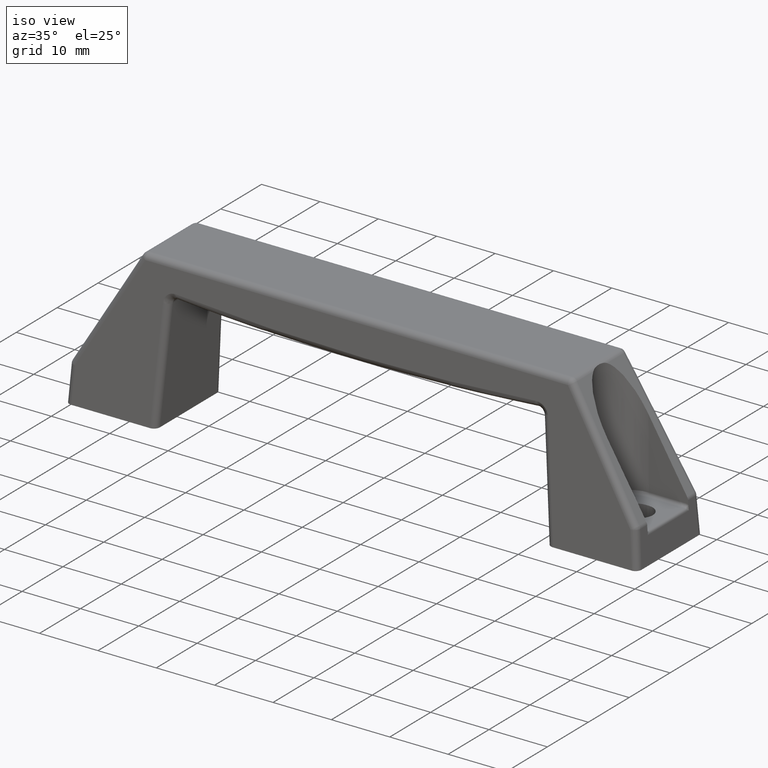
[diagram: clean part render]
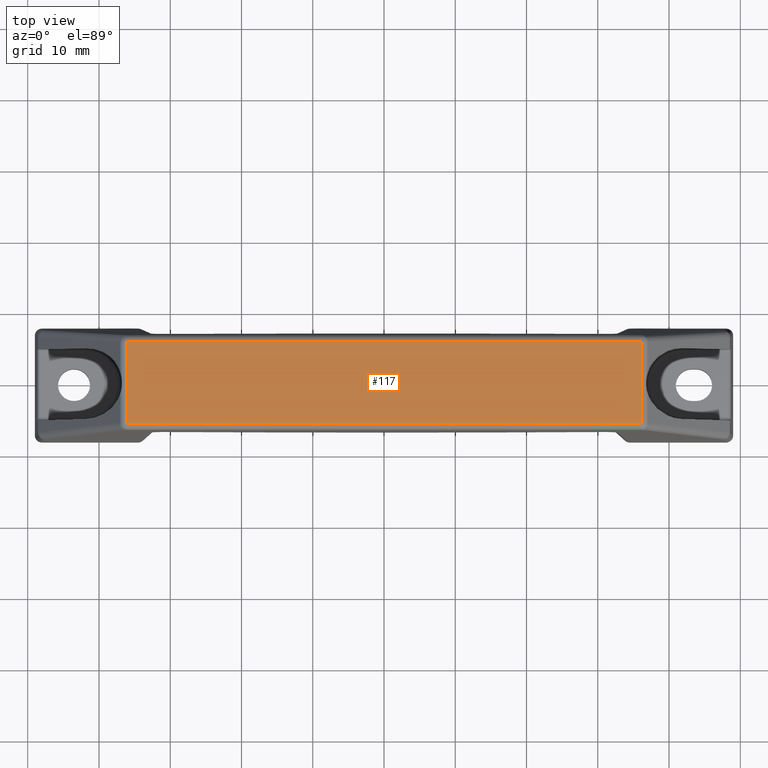
[diagram: tour spotlight — one face highlighted and labeled with its STEP entity id]
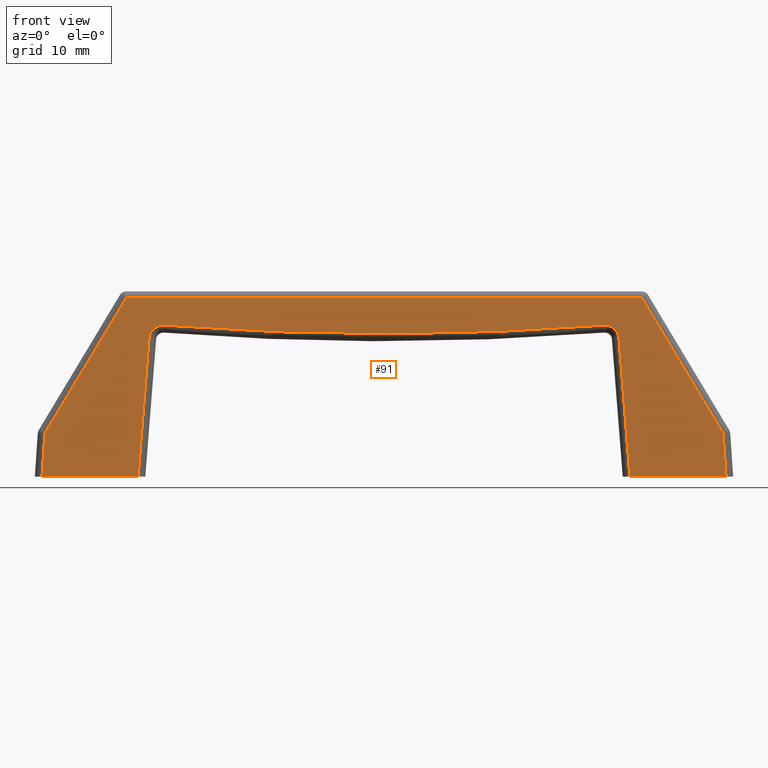
[diagram: tour spotlight — one face highlighted and labeled with its STEP entity id]
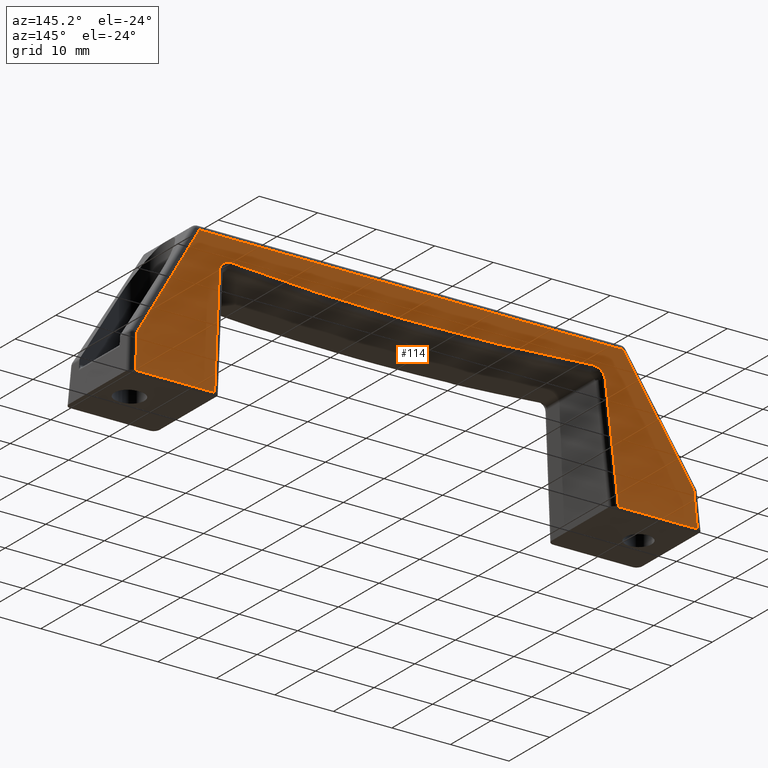
[diagram: tour spotlight — one face highlighted and labeled with its STEP entity id]
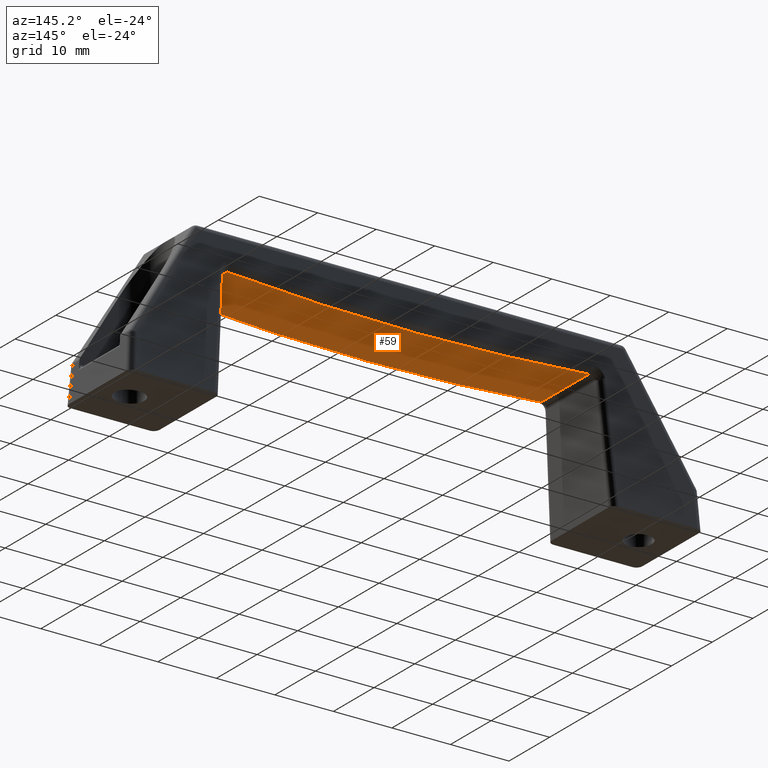
[diagram: tour spotlight — one face highlighted and labeled with its STEP entity id]
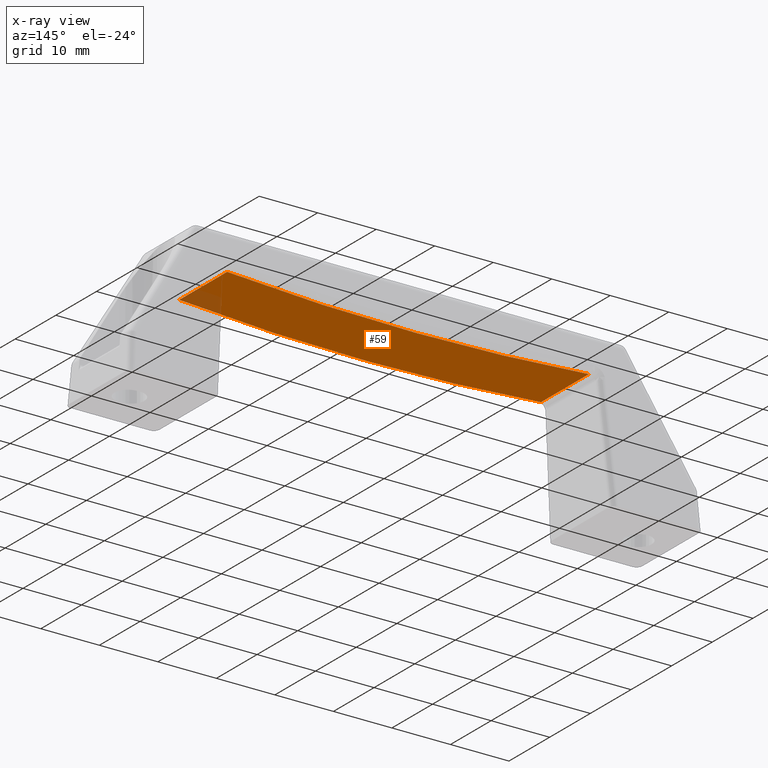
[diagram: x-ray of the same camera — body ghosted, this tour face saturated]
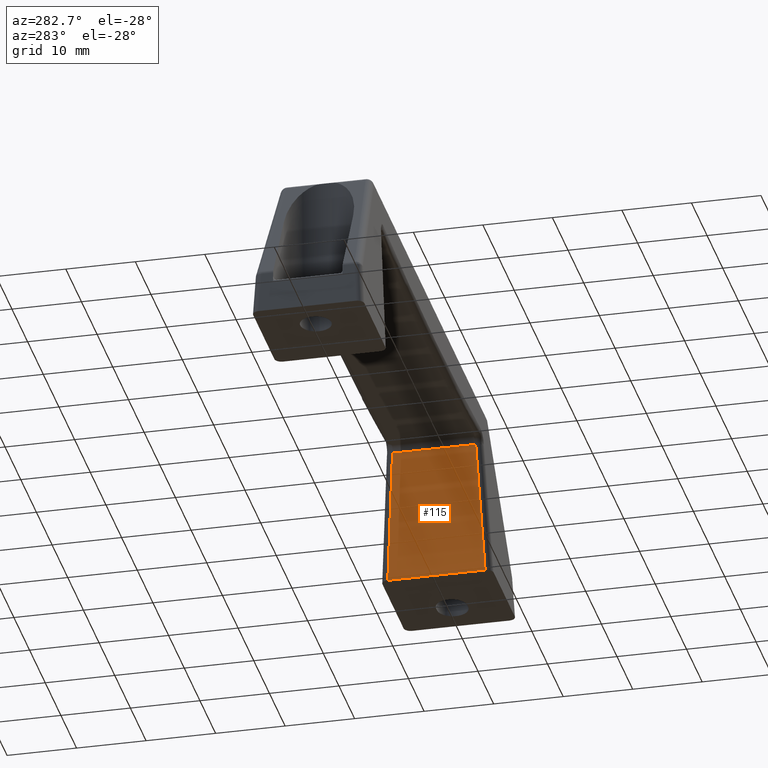
[diagram: tour spotlight — one face highlighted and labeled with its STEP entity id]
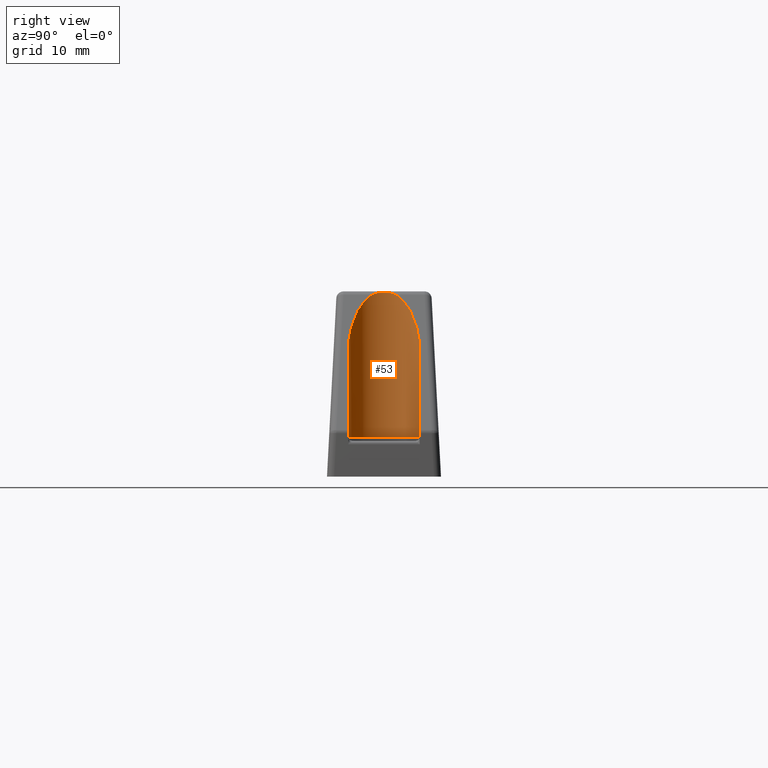
[diagram: tour spotlight — one face highlighted and labeled with its STEP entity id]
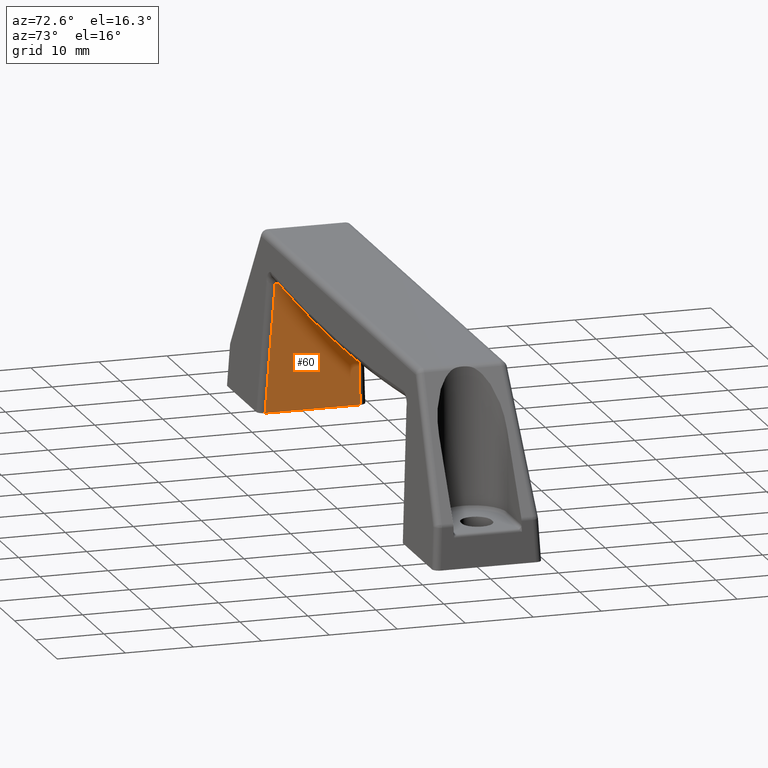
[diagram: tour spotlight — one face highlighted and labeled with its STEP entity id]
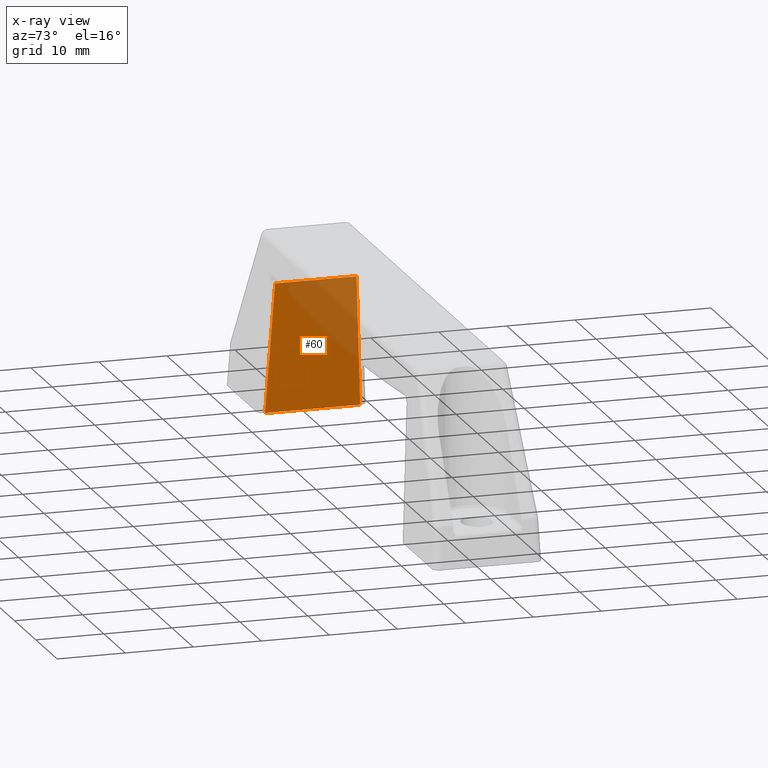
[diagram: x-ray of the same camera — body ghosted, this tour face saturated]
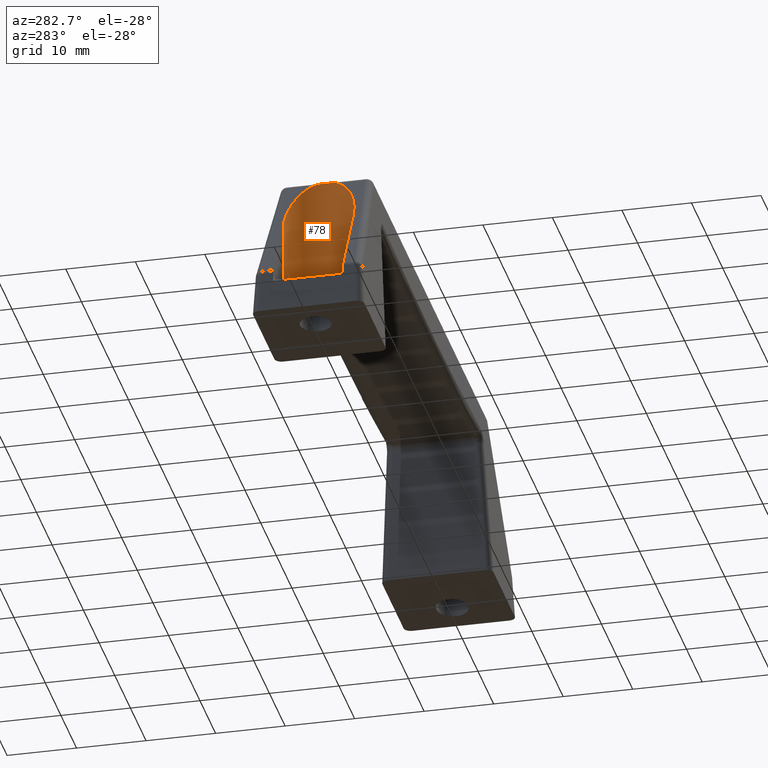
[diagram: tour spotlight — one face highlighted and labeled with its STEP entity id]
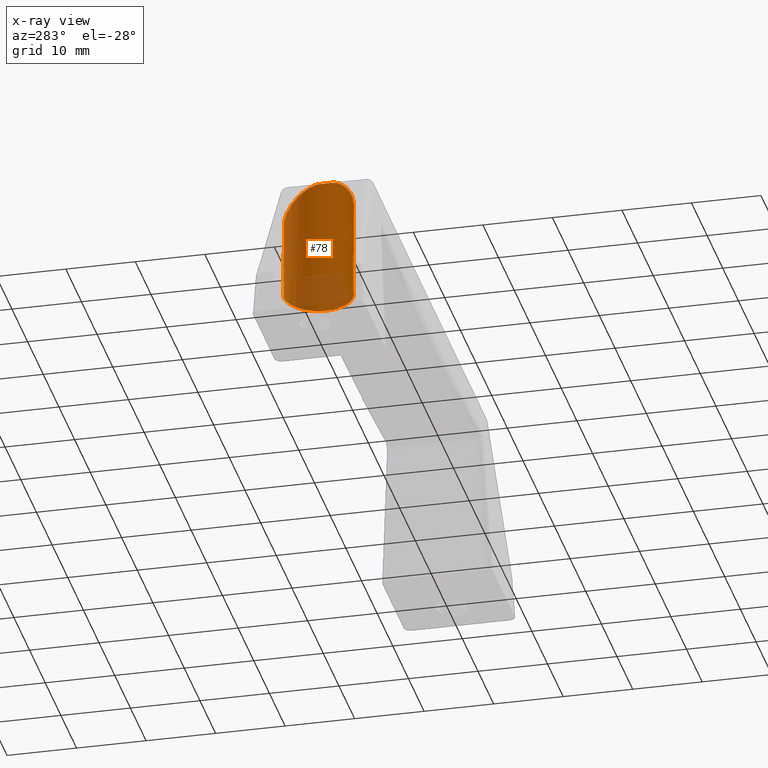
[diagram: x-ray of the same camera — body ghosted, this tour face saturated]
A machine part: a face-by-face anatomy tour. The part has 80 B-rep faces; the first image is the clean iso view, then the 8 largest visible faces are spotlighted one at a time (largest first), each with its STEP entity span.

Face 1 — top view, entity #117. In plain terms, the highlighted planar face has unit normal (-0, 0, 1).
Definition (entity closure, byte-faithful):
#117=ADVANCED_FACE('',(#895),#894,.T.);
#894=PLANE('',#1660);
#895=FACE_OUTER_BOUND('',#1661,.T.);
#1657=CARTESIAN_POINT('',(-4.34232935996E+01,-6.82611980631E+00,-3.85174495546E-11));
#1658=DIRECTION('',(-8.87022755801E-13,0.00000000000E+00,1.00000000000E+00));
#1659=DIRECTION('',(1.00000000000E+00,0.00000000000E+00,8.87022755801E-13));
#1660=AXIS2_PLACEMENT_3D('',#1657,#1658,#1659);
#1661=EDGE_LOOP('',(#2040,#2041,#2042,#2043));
#2040=ORIENTED_EDGE('',*,*,#2158,.T.);
#2041=ORIENTED_EDGE('',*,*,#2169,.T.);
#2042=ORIENTED_EDGE('',*,*,#2109,.T.);
#2043=ORIENTED_EDGE('',*,*,#2197,.F.);
#2109=EDGE_CURVE('',#2631,#2632,#2633,.T.);
#2158=EDGE_CURVE('',#2963,#2956,#2964,.T.);
#2169=EDGE_CURVE('',#2956,#2631,#3032,.T.);
#2197=EDGE_CURVE('',#2963,#2632,#3213,.T.);
#2631=VERTEX_POINT('',#3749);
#2632=VERTEX_POINT('',#3750);
#2633=LINE('',#3751,#3752);
#2956=VERTEX_POINT('',#3949);
#2963=VERTEX_POINT('',#3954);
#2964=LINE('',#3955,#3956);
#3032=LINE('',#4008,#4009);
#3213=LINE('',#4123,#4124);
#3749=CARTESIAN_POINT('',(3.61860779996E+01,-5.68843317192E+00,3.20978746288E-11));
#3750=CARTESIAN_POINT('',(3.61860779996E+01,5.68843317192E+00,3.20978746288E-11));
#3751=CARTESIAN_POINT('',(3.61860779996E+01,-5.68843317192E+00,3.20978746288E-11));
#3752=VECTOR('',#3753,1.13768663438E+01);
#3753=DIRECTION('',(0.00000000000E+00,1.00000000000E+00,0.00000000000E+00));
#3949=CARTESIAN_POINT('',(-3.61860779996E+01,-5.68843317193E+00,-3.20978746288E-11));
#3954=CARTESIAN_POINT('',(-3.61860779996E+01,5.68843317193E+00,-3.20978746288E-11));
#3955=CARTESIAN_POINT('',(-3.61860779996E+01,5.68843317193E+00,-3.20978746288E-11));
#3956=VECTOR('',#3957,1.13768663439E+01);
#3957=DIRECTION('',(0.00000000000E+00,-1.00000000000E+00,0.00000000000E+00));
#4008=CARTESIAN_POINT('',(-3.61860779996E+01,-5.68843317193E+00,-3.20978746288E-11));
#4009=VECTOR('',#4010,7.23721559992E+01);
#4010=DIRECTION('',(1.00000000000E+00,4.64877660113E-14,8.87022755801E-13));
#4123=CARTESIAN_POINT('',(-3.61860779996E+01,5.68843317193E+00,-3.20978746288E-11));
#4124=VECTOR('',#4125,7.23721559992E+01);
#4125=DIRECTION('',(1.00000000000E+00,-4.64877660113E-14,8.87022755801E-13));

Face 2 — front view, entity #91. In plain terms, the highlighted planar face has unit normal (0, -0.9986, 0.0523).
Definition (entity closure, byte-faithful):
#91=ADVANCED_FACE('',(#634),#633,.T.);
#633=PLANE('',#1395);
#634=FACE_OUTER_BOUND('',#1396,.T.);
#1392=CARTESIAN_POINT('',(-5.76014958832E+01,-6.55576897734E+00,1.55756955193E+00));
#1393=DIRECTION('',(0.00000000000E+00,-9.98629534755E-01,5.23359562429E-02));
#1394=DIRECTION('',(0.00000000000E+00,-5.23359562429E-02,-9.98629534755E-01));
#1395=AXIS2_PLACEMENT_3D('',#1392,#1393,#1394);
#1396=EDGE_LOOP('',(#1910,#1911,#1912,#1913,#1914,#1915,#1916,#1917,#1918,#1919,#1920,#1921));
#1910=ORIENTED_EDGE('',*,*,#2139,.T.);
#1911=ORIENTED_EDGE('',*,*,#2165,.T.);
#1912=ORIENTED_EDGE('',*,*,#2167,.T.);
#1913=ORIENTED_EDGE('',*,*,#2171,.T.);
#1914=ORIENTED_EDGE('',*,*,#2174,.T.);
#1915=ORIENTED_EDGE('',*,*,#2176,.T.);
#1916=ORIENTED_EDGE('',*,*,#2130,.T.);
#1917=ORIENTED_EDGE('',*,*,#2213,.T.);
#1918=ORIENTED_EDGE('',*,*,#2214,.T.);
#1919=ORIENTED_EDGE('',*,*,#2122,.T.);
#1920=ORIENTED_EDGE('',*,*,#2119,.T.);
#1921=ORIENTED_EDGE('',*,*,#2215,.T.);
#2119=EDGE_CURVE('',#2683,#2690,#2697,.T.);
#2122=EDGE_CURVE('',#2703,#2683,#2717,.T.);
#2130=EDGE_CURVE('',#2771,#2764,#2772,.T.);
#2139=EDGE_CURVE('',#2833,#2826,#2834,.T.);
#2165=EDGE_CURVE('',#2826,#2994,#3007,.T.);
#2167=EDGE_CURVE('',#2994,#3013,#3020,.T.);
#2171=EDGE_CURVE('',#3013,#3038,#3045,.T.);
#2174=EDGE_CURVE('',#3038,#3057,#3064,.T.);
#2176=EDGE_CURVE('',#3057,#2771,#3076,.T.);
#2213=EDGE_CURVE('',#2764,#3314,#3315,.T.);
#2214=EDGE_CURVE('',#3314,#2703,#3321,.T.);
#2215=EDGE_CURVE('',#2690,#2833,#3327,.T.);
#2683=VERTEX_POINT('',#3781);
#2690=VERTEX_POINT('',#3786);
#2697=(BOUNDED_CURVE() B_SPLINE_CURVE(2,(#3791,#3792,#3793),.UNSPECIFIED.,.F.,.F.) B_SPLINE_CURVE_WITH_KNOTS((3,3),(-3.21991697763E+00,-1.64933614313E+00),.UNSPECIFIED.) CURVE() GEOMETRIC_REPRESENTATION_ITEM() RATIONAL_B_SPLINE_CURVE((1.00000000000E+00,7.07182965116E-01,1.00000000000E+00)) REPRESENTATION_ITEM('') );
#2703=VERTEX_POINT('',#3794);
#2717=(BOUNDED_CURVE() B_SPLINE_CURVE(2,(#3803,#3804,#3805),.UNSPECIFIED.,.F.,.F.) B_SPLINE_CURVE_WITH_KNOTS((3,3),(-7.83243240369E-02,7.83243240369E-02),.UNSPECIFIED.) CURVE() GEOMETRIC_REPRESENTATION_ITEM() RATIONAL_B_SPLINE_CURVE((1.00000000000E+00,9.96934217917E-01,1.00000000000E+00)) REPRESENTATION_ITEM('') );
#2764=VERTEX_POINT('',#3831);
#2771=VERTEX_POINT('',#3837);
#2772=LINE('',#3838,#3839);
#2826=VERTEX_POINT('',#3870);
#2833=VERTEX_POINT('',#3874);
#2834=LINE('',#3875,#3876);
#2994=VERTEX_POINT('',#3984);
#3007=LINE('',#3993,#3994);
#3013=VERTEX_POINT('',#3996);
#3020=LINE('',#4001,#4002);
#3038=VERTEX_POINT('',#4011);
#3045=LINE('',#4016,#4017);
#3057=VERTEX_POINT('',#4023);
#3064=LINE('',#4028,#4029);
#3076=LINE('',#4035,#4036);
#3314=VERTEX_POINT('',#4182);
#3315=LINE('',#4183,#4184);
#3321=(BOUNDED_CURVE() B_SPLINE_CURVE(2,(#4186,#4187,#4188),.UNSPECIFIED.,.F.,.F.) B_SPLINE_CURVE_WITH_KNOTS((3,3),(1.64933614313E+00,3.21991697763E+00),.UNSPECIFIED.) CURVE() GEOMETRIC_REPRESENTATION_ITEM() RATIONAL_B_SPLINE_CURVE((1.00000000000E+00,7.07182965116E-01,1.00000000000E+00)) REPRESENTATION_ITEM('') );
#3327=LINE('',#4189,#4190);
#3781=CARTESIAN_POINT('',(3.08282407629E+01,-6.88579729579E+00,-4.73974590318E+00));
#3786=CARTESIAN_POINT('',(3.29785639622E+01,-6.98206777875E+00,-6.57669614756E+00));
#3791=CARTESIAN_POINT('',(3.08282407629E+01,-6.88579729579E+00,-4.73974590318E+00));
#3792=CARTESIAN_POINT('',(3.28216795818E+01,-6.87759784646E+00,-4.58329108983E+00));
#3793=CARTESIAN_POINT('',(3.29785639622E+01,-6.98206777875E+00,-6.57669614756E+00));
#3794=CARTESIAN_POINT('',(-3.08282407629E+01,-6.88579729579E+00,-4.73974590318E+00));
#3803=CARTESIAN_POINT('',(-3.08282407629E+01,-6.88579729579E+00,-4.73974590318E+00));
#3804=CARTESIAN_POINT('',(-1.90070181816E-13,-7.01260058444E+00,-7.15929678628E+00));
#3805=CARTESIAN_POINT('',(3.08282407629E+01,-6.88579729579E+00,-4.73974590318E+00));
#3831=CARTESIAN_POINT('',(-3.45072111276E+01,-8.00000000007E+00,-2.60000000000E+01));
#3837=CARTESIAN_POINT('',(-4.80012465693E+01,-8.00000000007E+00,-2.60000000000E+01));
#3838=CARTESIAN_POINT('',(-4.80012465693E+01,-8.00000000007E+00,-2.60000000000E+01));
#3839=VECTOR('',#3840,1.34940354417E+01);
#3840=DIRECTION('',(1.00000000000E+00,0.00000000000E+00,8.89360848265E-13));
#3870=CARTESIAN_POINT('',(4.80012465693E+01,-8.00000000007E+00,-2.60000000000E+01));
#3874=CARTESIAN_POINT('',(3.45072111276E+01,-8.00000000007E+00,-2.60000000000E+01));
#3875=CARTESIAN_POINT('',(3.45072111276E+01,-8.00000000007E+00,-2.60000000000E+01));
#3876=VECTOR('',#3877,1.34940354417E+01);
#3877=DIRECTION('',(1.00000000000E+00,0.00000000000E+00,-8.84095242296E-13));
#3984=CARTESIAN_POINT('',(4.75866152597E+01,-7.68132636170E+00,-1.99193447489E+01));
#3993=CARTESIAN_POINT('',(4.80012465693E+01,-8.00000000000E+00,-2.60000000001E+01));
#3994=VECTOR('',#3995,6.10310087531E+00);
#3995=DIRECTION('',(-6.79378103245E-02,5.22150370459E-02,9.96322259028E-01));
#3996=CARTESIAN_POINT('',(3.61860779996E+01,-6.68706270668E+00,-9.47664043725E-01));
#4001=CARTESIAN_POINT('',(4.75866152596E+01,-7.68132636170E+00,-1.99193447489E+01));
#4002=VECTOR('',#4003,2.21559355210E+01);
#4003=DIRECTION('',(-5.14559055709E-01,4.48757243440E-02,8.56279830168E-01));
#4011=CARTESIAN_POINT('',(-3.61860779996E+01,-6.68706270668E+00,-9.47664043789E-01));
#4016=CARTESIAN_POINT('',(3.61860779996E+01,-6.68706270668E+00,-9.47664043725E-01));
#4017=VECTOR('',#4018,7.23721559992E+01);
#4018=DIRECTION('',(-1.00000000000E+00,-4.64877660113E-14,-8.87022901733E-13));
#4023=CARTESIAN_POINT('',(-4.75866152597E+01,-7.68132636170E+00,-1.99193447489E+01));
#4028=CARTESIAN_POINT('',(-3.61860779996E+01,-6.68706270668E+00,-9.47664043808E-01));
#4029=VECTOR('',#4030,2.21559355209E+01);
#4030=DIRECTION('',(-5.14559055709E-01,-4.48757243439E-02,-8.56279830168E-01));
#4035=CARTESIAN_POINT('',(-4.75866152597E+01,-7.68132636170E+00,-1.99193447489E+01));
#4036=VECTOR('',#4037,6.10310087531E+00);
#4037=DIRECTION('',(-6.79378103247E-02,-5.22150370459E-02,-9.96322259028E-01));
#4182=CARTESIAN_POINT('',(-3.29785639622E+01,-6.98206777875E+00,-6.57669614756E+00));
#4183=CARTESIAN_POINT('',(-3.45072111276E+01,-8.00000000000E+00,-2.60000000000E+01));
#4184=VECTOR('',#4185,1.95099379986E+01);
#4185=DIRECTION('',(7.83522308207E-02,5.21750618235E-02,9.95559486344E-01));
#4186=CARTESIAN_POINT('',(-3.29785639622E+01,-6.98206777875E+00,-6.57669614756E+00));
#4187=CARTESIAN_POINT('',(-3.28216795818E+01,-6.87759784646E+00,-4.58329108983E+00));
#4188=CARTESIAN_POINT('',(-3.08282407629E+01,-6.88579729579E+00,-4.73974590318E+00));
#4189=CARTESIAN_POINT('',(3.29785639622E+01,-6.98206777875E+00,-6.57669614757E+00));
#4190=VECTOR('',#4191,1.95099379986E+01);
#4191=DIRECTION('',(7.83522308207E-02,-5.21750618234E-02,-9.95559486344E-01));

Face 3 — auxiliary view, entity #114. In plain terms, the highlighted planar face has unit normal (0, 0.9986, 0.0523).
Definition (entity closure, byte-faithful):
#114=ADVANCED_FACE('',(#865),#864,.T.);
#864=PLANE('',#1645);
#865=FACE_OUTER_BOUND('',#1646,.T.);
#1642=CARTESIAN_POINT('',(5.76014958832E+01,6.55576897734E+00,1.55756955193E+00));
#1643=DIRECTION('',(0.00000000000E+00,9.98629534755E-01,5.23359562429E-02));
#1644=DIRECTION('',(0.00000000000E+00,5.23359562429E-02,-9.98629534755E-01));
#1645=AXIS2_PLACEMENT_3D('',#1642,#1643,#1644);
#1646=EDGE_LOOP('',(#2020,#2021,#2022,#2023,#2024,#2025,#2026,#2027,#2028,#2029,#2030,#2031));
#2020=ORIENTED_EDGE('',*,*,#2143,.F.);
#2021=ORIENTED_EDGE('',*,*,#2238,.F.);
#2022=ORIENTED_EDGE('',*,*,#2070,.F.);
#2023=ORIENTED_EDGE('',*,*,#2074,.F.);
#2024=ORIENTED_EDGE('',*,*,#2234,.F.);
#2025=ORIENTED_EDGE('',*,*,#2232,.F.);
#2026=ORIENTED_EDGE('',*,*,#2134,.F.);
#2027=ORIENTED_EDGE('',*,*,#2203,.F.);
#2028=ORIENTED_EDGE('',*,*,#2199,.F.);
#2029=ORIENTED_EDGE('',*,*,#2195,.F.);
#2030=ORIENTED_EDGE('',*,*,#2194,.F.);
#2031=ORIENTED_EDGE('',*,*,#2237,.F.);
#2070=EDGE_CURVE('',#2359,#2367,#2368,.T.);
#2074=EDGE_CURVE('',#2387,#2359,#2395,.T.);
#2134=EDGE_CURVE('',#2792,#2757,#2799,.T.);
#2143=EDGE_CURVE('',#2854,#2819,#2861,.T.);
#2194=EDGE_CURVE('',#3187,#3174,#3194,.T.);
#2195=EDGE_CURVE('',#3174,#3200,#3201,.T.);
#2199=EDGE_CURVE('',#3200,#3225,#3226,.T.);
#2203=EDGE_CURVE('',#3225,#2792,#3250,.T.);
#2232=EDGE_CURVE('',#2757,#3433,#3434,.T.);
#2234=EDGE_CURVE('',#3433,#2387,#3446,.T.);
#2237=EDGE_CURVE('',#2819,#3187,#3464,.T.);
#2238=EDGE_CURVE('',#2367,#2854,#3470,.T.);
#2359=VERTEX_POINT('',#3578);
#2367=VERTEX_POINT('',#3584);
#2368=(BOUNDED_CURVE() B_SPLINE_CURVE(2,(#3585,#3586,#3587),.UNSPECIFIED.,.F.,.F.) B_SPLINE_CURVE_WITH_KNOTS((3,3),(-3.21991697763E+00,-1.64933614313E+00),.UNSPECIFIED.) CURVE() GEOMETRIC_REPRESENTATION_ITEM() RATIONAL_B_SPLINE_CURVE((1.00000000000E+00,7.07182965116E-01,1.00000000000E+00)) REPRESENTATION_ITEM('') );
#2387=VERTEX_POINT('',#3596);
#2395=(BOUNDED_CURVE() B_SPLINE_CURVE(2,(#3602,#3603,#3604),.UNSPECIFIED.,.F.,.F.) B_SPLINE_CURVE_WITH_KNOTS((3,3),(-7.83243240369E-02,7.83243240369E-02),.UNSPECIFIED.) CURVE() GEOMETRIC_REPRESENTATION_ITEM() RATIONAL_B_SPLINE_CURVE((1.00000000000E+00,9.96934217917E-01,1.00000000000E+00)) REPRESENTATION_ITEM('') );
#2757=VERTEX_POINT('',#3825);
#2792=VERTEX_POINT('',#3849);
#2799=LINE('',#3853,#3854);
#2819=VERTEX_POINT('',#3866);
#2854=VERTEX_POINT('',#3888);
#2861=LINE('',#3894,#3895);
#3174=VERTEX_POINT('',#4098);
#3187=VERTEX_POINT('',#4107);
#3194=LINE('',#4112,#4113);
#3200=VERTEX_POINT('',#4115);
#3201=LINE('',#4116,#4117);
#3225=VERTEX_POINT('',#4130);
#3226=LINE('',#4131,#4132);
#3250=LINE('',#4146,#4147);
#3433=VERTEX_POINT('',#4272);
#3434=LINE('',#4273,#4274);
#3446=(BOUNDED_CURVE() B_SPLINE_CURVE(2,(#4280,#4281,#4282),.UNSPECIFIED.,.F.,.F.) B_SPLINE_CURVE_WITH_KNOTS((3,3),(1.64933614313E+00,3.21991697763E+00),.UNSPECIFIED.) CURVE() GEOMETRIC_REPRESENTATION_ITEM() RATIONAL_B_SPLINE_CURVE((1.00000000000E+00,7.07182965116E-01,1.00000000000E+00)) REPRESENTATION_ITEM('') );
#3464=LINE('',#4291,#4292);
#3470=LINE('',#4294,#4295);
#3578=CARTESIAN_POINT('',(3.08282407629E+01,6.88579729579E+00,-4.73974590318E+00));
#3584=CARTESIAN_POINT('',(3.29785639622E+01,6.98206777875E+00,-6.57669614756E+00));
#3585=CARTESIAN_POINT('',(3.08282407629E+01,6.88579729579E+00,-4.73974590318E+00));
#3586=CARTESIAN_POINT('',(3.28216795818E+01,6.87759784646E+00,-4.58329108983E+00));
#3587=CARTESIAN_POINT('',(3.29785639622E+01,6.98206777875E+00,-6.57669614756E+00));
#3596=CARTESIAN_POINT('',(-3.08282407629E+01,6.88579729579E+00,-4.73974590318E+00));
#3602=CARTESIAN_POINT('',(-3.08282407629E+01,6.88579729579E+00,-4.73974590318E+00));
#3603=CARTESIAN_POINT('',(-1.90070181816E-13,7.01260058444E+00,-7.15929678628E+00));
#3604=CARTESIAN_POINT('',(3.08282407629E+01,6.88579729579E+00,-4.73974590318E+00));
#3825=CARTESIAN_POINT('',(-3.45072111276E+01,8.00000000007E+00,-2.60000000000E+01));
#3849=CARTESIAN_POINT('',(-4.80012465693E+01,8.00000000007E+00,-2.60000000000E+01));
#3853=CARTESIAN_POINT('',(-4.80012465693E+01,8.00000000007E+00,-2.60000000000E+01));
#3854=VECTOR('',#3855,1.34940354417E+01);
#3855=DIRECTION('',(1.00000000000E+00,0.00000000000E+00,8.89360848265E-13));
#3866=CARTESIAN_POINT('',(4.80012465693E+01,8.00000000007E+00,-2.60000000000E+01));
#3888=CARTESIAN_POINT('',(3.45072111276E+01,8.00000000007E+00,-2.60000000000E+01));
#3894=CARTESIAN_POINT('',(3.45072111276E+01,8.00000000007E+00,-2.60000000000E+01));
#3895=VECTOR('',#3896,1.34940354417E+01);
#3896=DIRECTION('',(1.00000000000E+00,0.00000000000E+00,-8.84095242296E-13));
#4098=CARTESIAN_POINT('',(3.61860779996E+01,6.68706270668E+00,-9.47664043725E-01));
#4107=CARTESIAN_POINT('',(4.75866152597E+01,7.68132636170E+00,-1.99193447489E+01));
#4112=CARTESIAN_POINT('',(4.75866152596E+01,7.68132636170E+00,-1.99193447489E+01));
#4113=VECTOR('',#4114,2.21559355210E+01);
#4114=DIRECTION('',(-5.14559055709E-01,-4.48757243440E-02,8.56279830168E-01));
#4115=CARTESIAN_POINT('',(-3.61860779996E+01,6.68706270668E+00,-9.47664043789E-01));
#4116=CARTESIAN_POINT('',(3.61860779996E+01,6.68706270668E+00,-9.47664043725E-01));
#4117=VECTOR('',#4118,7.23721559992E+01);
#4118=DIRECTION('',(-1.00000000000E+00,4.64877660113E-14,-8.87022901733E-13));
#4130=CARTESIAN_POINT('',(-4.75866152597E+01,7.68132636170E+00,-1.99193447489E+01));
#4131=CARTESIAN_POINT('',(-3.61860779996E+01,6.68706270668E+00,-9.47664043808E-01));
#4132=VECTOR('',#4133,2.21559355209E+01);
#4133=DIRECTION('',(-5.14559055709E-01,4.48757243439E-02,-8.56279830168E-01));
#4146=CARTESIAN_POINT('',(-4.75866152597E+01,7.68132636170E+00,-1.99193447489E+01));
#4147=VECTOR('',#4148,6.10310087531E+00);
#4148=DIRECTION('',(-6.79378103247E-02,5.22150370459E-02,-9.96322259028E-01));
#4272=CARTESIAN_POINT('',(-3.29785639622E+01,6.98206777875E+00,-6.57669614756E+00));
#4273=CARTESIAN_POINT('',(-3.45072111276E+01,8.00000000000E+00,-2.60000000000E+01));
#4274=VECTOR('',#4275,1.95099379986E+01);
#4275=DIRECTION('',(7.83522308207E-02,-5.21750618235E-02,9.95559486344E-01));
#4280=CARTESIAN_POINT('',(-3.29785639622E+01,6.98206777875E+00,-6.57669614756E+00));
#4281=CARTESIAN_POINT('',(-3.28216795818E+01,6.87759784646E+00,-4.58329108983E+00));
#4282=CARTESIAN_POINT('',(-3.08282407629E+01,6.88579729579E+00,-4.73974590318E+00));
#4291=CARTESIAN_POINT('',(4.80012465693E+01,8.00000000000E+00,-2.60000000001E+01));
#4292=VECTOR('',#4293,6.10310087531E+00);
#4293=DIRECTION('',(-6.79378103245E-02,-5.22150370459E-02,9.96322259028E-01));
#4294=CARTESIAN_POINT('',(3.29785639622E+01,6.98206777875E+00,-6.57669614757E+00));
#4295=VECTOR('',#4296,1.95099379986E+01);
#4296=DIRECTION('',(7.83522308207E-02,5.21750618234E-02,-9.95559486344E-01));

Face 4 — auxiliary view, entity #59. An x-ray twin of the same camera follows (body ghosted, this face saturated) — the face is partly hidden behind the body. In plain terms, the highlighted cylindrical surface (partial cylindrical patch) has radius 395 mm, axis along (-0, 1, 0).
Definition (entity closure, byte-faithful):
#59=ADVANCED_FACE('',(#311),#310,.T.);
#310=CYLINDRICAL_SURFACE('',#1182,3.95000000000E+02);
#311=FACE_OUTER_BOUND('',#1183,.T.);
#1179=CARTESIAN_POINT('',(0.00000000000E+00,9.92000000000E+02,3.88000000000E+02));
#1180=DIRECTION('',(-0.00000000000E+00,1.00000000000E+00,0.00000000000E+00));
#1181=DIRECTION('',(-0.00000000000E+00,-0.00000000000E+00,1.00000000000E+00));
#1182=AXIS2_PLACEMENT_3D('',#1179,#1180,#1181);
#1183=EDGE_LOOP('',(#1761,#1762,#1763,#1764));
#1761=ORIENTED_EDGE('',*,*,#2116,.T.);
#1762=ORIENTED_EDGE('',*,*,#2121,.T.);
#1763=ORIENTED_EDGE('',*,*,#2123,.T.);
#1764=ORIENTED_EDGE('',*,*,#2075,.F.);
#2075=EDGE_CURVE('',#2360,#2388,#2401,.T.);
#2116=EDGE_CURVE('',#2360,#2670,#2677,.T.);
#2121=EDGE_CURVE('',#2670,#2704,#2711,.T.);
#2123=EDGE_CURVE('',#2704,#2388,#2723,.T.);
#2360=VERTEX_POINT('',#3579);
#2388=VERTEX_POINT('',#3597);
#2401=(BOUNDED_CURVE() B_SPLINE_CURVE(2,(#3605,#3606,#3607),.UNSPECIFIED.,.F.,.F.) B_SPLINE_CURVE_WITH_KNOTS((3,3),(-7.83243240369E-02,7.83243240369E-02),.UNSPECIFIED.) CURVE() GEOMETRIC_REPRESENTATION_ITEM() RATIONAL_B_SPLINE_CURVE((1.00000000000E+00,9.96934217917E-01,1.00000000000E+00)) REPRESENTATION_ITEM('') );
#2670=VERTEX_POINT('',#3774);
#2677=LINE('',#3778,#3779);
#2704=VERTEX_POINT('',#3795);
#2711=(BOUNDED_CURVE() B_SPLINE_CURVE(2,(#3800,#3801,#3802),.UNSPECIFIED.,.F.,.F.) B_SPLINE_CURVE_WITH_KNOTS((3,3),(-7.83243240369E-02,7.83243240369E-02),.UNSPECIFIED.) CURVE() GEOMETRIC_REPRESENTATION_ITEM() RATIONAL_B_SPLINE_CURVE((1.00000000000E+00,9.96934217917E-01,1.00000000000E+00)) REPRESENTATION_ITEM('') );
#2723=LINE('',#3806,#3807);
#3579=CARTESIAN_POINT('',(3.09064850288E+01,5.88716776104E+00,-5.78901607734E+00));
#3597=CARTESIAN_POINT('',(-3.09064850288E+01,5.88716776104E+00,-5.78901607734E+00));
#3605=CARTESIAN_POINT('',(3.09064850288E+01,5.88716776104E+00,-5.78901607734E+00));
#3606=CARTESIAN_POINT('',(-4.76063632959E-13,6.01397104968E+00,-8.21470795253E+00));
#3607=CARTESIAN_POINT('',(-3.09064850288E+01,5.88716776104E+00,-5.78901607734E+00));
#3774=CARTESIAN_POINT('',(3.09064850288E+01,-5.88716776104E+00,-5.78901607734E+00));
#3778=CARTESIAN_POINT('',(3.09064850288E+01,5.88716776104E+00,-5.78901607734E+00));
#3779=VECTOR('',#3780,1.17743355221E+01);
#3780=DIRECTION('',(0.00000000000E+00,-1.00000000000E+00,0.00000000000E+00));
#3795=CARTESIAN_POINT('',(-3.09064850288E+01,-5.88716776104E+00,-5.78901607734E+00));
#3800=CARTESIAN_POINT('',(3.09064850288E+01,-5.88716776104E+00,-5.78901607734E+00));
#3801=CARTESIAN_POINT('',(-4.76063632959E-13,-6.01397104968E+00,-8.21470795253E+00));
#3802=CARTESIAN_POINT('',(-3.09064850288E+01,-5.88716776104E+00,-5.78901607734E+00));
#3806=CARTESIAN_POINT('',(-3.09064850288E+01,-5.88716776104E+00,-5.78901607734E+00));
#3807=VECTOR('',#3808,1.17743355221E+01);
#3808=DIRECTION('',(0.00000000000E+00,1.00000000000E+00,0.00000000000E+00));

Face 5 — auxiliary view, entity #115. In plain terms, the highlighted planar face has unit normal (-0.9969, 0, -0.0785).
Definition (entity closure, byte-faithful):
#115=ADVANCED_FACE('',(#875),#874,.T.);
#874=PLANE('',#1650);
#875=FACE_OUTER_BOUND('',#1651,.T.);
#1647=CARTESIAN_POINT('',(3.36518353372E+01,-8.39341894444E+00,-2.79292508801E+01));
#1648=DIRECTION('',(-9.96917333733E-01,0.00000000000E+00,-7.84590957279E-02));
#1649=DIRECTION('',(-7.84590957279E-02,0.00000000000E+00,9.96917333733E-01));
#1650=AXIS2_PLACEMENT_3D('',#1647,#1648,#1649);
#1651=EDGE_LOOP('',(#2032,#2033,#2034,#2035));
#2032=ORIENTED_EDGE('',*,*,#2141,.T.);
#2033=ORIENTED_EDGE('',*,*,#2225,.T.);
#2034=ORIENTED_EDGE('',*,*,#2114,.T.);
#2035=ORIENTED_EDGE('',*,*,#2239,.F.);
#2114=EDGE_CURVE('',#2663,#2374,#2664,.T.);
#2141=EDGE_CURVE('',#2847,#2840,#2848,.T.);
#2225=EDGE_CURVE('',#2840,#2663,#3390,.T.);
#2239=EDGE_CURVE('',#2847,#2374,#3476,.T.);
#2374=VERTEX_POINT('',#3588);
#2663=VERTEX_POINT('',#3770);
#2664=LINE('',#3771,#3772);
#2840=VERTEX_POINT('',#3878);
#2847=VERTEX_POINT('',#3884);
#2848=LINE('',#3885,#3886);
#3390=LINE('',#4247,#4248);
#3476=LINE('',#4297,#4298);
#3588=CARTESIAN_POINT('',(3.19816466285E+01,5.98343824400E+00,-6.70749119953E+00));
#3770=CARTESIAN_POINT('',(3.19816466285E+01,-5.98343824400E+00,-6.70749119953E+00));
#3771=CARTESIAN_POINT('',(3.19816466285E+01,-5.98343824400E+00,-6.70749119953E+00));
#3772=VECTOR('',#3773,1.19668764880E+01);
#3773=DIRECTION('',(0.00000000000E+00,1.00000000000E+00,0.00000000000E+00));
#3878=CARTESIAN_POINT('',(3.35000000000E+01,-6.99451578703E+00,-2.60000000000E+01));
#3884=CARTESIAN_POINT('',(3.35000000000E+01,6.99451578703E+00,-2.60000000000E+01));
#3885=CARTESIAN_POINT('',(3.35000000000E+01,6.99451578703E+00,-2.60000000000E+01));
#3886=VECTOR('',#3887,1.39890315741E+01);
#3887=DIRECTION('',(0.00000000000E+00,-1.00000000000E+00,0.00000000000E+00));
#4247=CARTESIAN_POINT('',(3.35000000000E+01,-6.99451578703E+00,-2.60000000000E+01));
#4248=VECTOR('',#4249,1.93785595589E+01);
#4249=DIRECTION('',(-7.83522308207E-02,5.21750618234E-02,9.95559486344E-01));
#4297=CARTESIAN_POINT('',(3.35000000000E+01,6.99451578703E+00,-2.60000000000E+01));
#4298=VECTOR('',#4299,1.93785595589E+01);
#4299=DIRECTION('',(-7.83522308207E-02,-5.21750618234E-02,9.95559486344E-01));

Face 6 — right view, entity #53. In plain terms, the highlighted cylindrical surface (edge-blend (fillet) strip) has radius 5 mm, axis along (-0.0071, -0, 1).
Definition (entity closure, byte-faithful):
#53=ADVANCED_FACE('',(#251),#250,.F.);
#250=CYLINDRICAL_SURFACE('',#1118,5.00000000000E+00);
#251=FACE_OUTER_BOUND('',#1119,.T.);
#1115=CARTESIAN_POINT('',(4.17079238555E+01,-4.30766533555E-11,6.16445021280E+00));
#1116=DIRECTION('',(-7.07529459765E-03,-0.00000000000E+00,9.99974969790E-01));
#1117=DIRECTION('',(9.99974969790E-01,-0.00000000000E+00,7.07529459765E-03));
#1118=AXIS2_PLACEMENT_3D('',#1115,#1116,#1117);
#1119=EDGE_LOOP('',(#1733,#1734,#1735,#1736,#1737,#1738));
#1733=ORIENTED_EDGE('',*,*,#2106,.F.);
#1734=ORIENTED_EDGE('',*,*,#2104,.T.);
#1735=ORIENTED_EDGE('',*,*,#2107,.T.);
#1736=ORIENTED_EDGE('',*,*,#2077,.T.);
#1737=ORIENTED_EDGE('',*,*,#2108,.F.);
#1738=ORIENTED_EDGE('',*,*,#2089,.F.);
#2077=EDGE_CURVE('',#2415,#2407,#2416,.T.);
#2089=EDGE_CURVE('',#2491,#2469,#2498,.T.);
#2104=EDGE_CURVE('',#2600,#2284,#2601,.T.);
#2106=EDGE_CURVE('',#2600,#2491,#2613,.T.);
#2107=EDGE_CURVE('',#2284,#2415,#2619,.T.);
#2108=EDGE_CURVE('',#2469,#2407,#2625,.T.);
#2284=VERTEX_POINT('',#3529);
#2407=VERTEX_POINT('',#3608);
#2415=VERTEX_POINT('',#3613);
#2416=(BOUNDED_CURVE() B_SPLINE_CURVE(2,(#3614,#3615,#3616),.UNSPECIFIED.,.F.,.F.) B_SPLINE_CURVE_WITH_KNOTS((3,3),(-4.71238898038E+00,-3.48287451808E+00),.UNSPECIFIED.) CURVE() GEOMETRIC_REPRESENTATION_ITEM() RATIONAL_B_SPLINE_CURVE((1.00000000000E+00,8.16913490386E-01,1.00000000000E+00)) REPRESENTATION_ITEM('') );
#2469=VERTEX_POINT('',#3643);
#2491=VERTEX_POINT('',#3656);
#2498=(BOUNDED_CURVE() B_SPLINE_CURVE(2,(#3660,#3661,#3662),.UNSPECIFIED.,.F.,.F.) B_SPLINE_CURVE_WITH_KNOTS((3,3),(-4.71238898038E+00,-3.48287451808E+00),.UNSPECIFIED.) CURVE() GEOMETRIC_REPRESENTATION_ITEM() RATIONAL_B_SPLINE_CURVE((1.00000000000E+00,8.16913490386E-01,1.00000000000E+00)) REPRESENTATION_ITEM('') );
#2600=VERTEX_POINT('',#3719);
#2601=(BOUNDED_CURVE() B_SPLINE_CURVE(2,(#3720,#3721,#3722,#3723,#3724),.UNSPECIFIED.,.F.,.F.) B_SPLINE_CURVE_WITH_KNOTS((3,2,3),(-4.71238898038E+00,-3.14159265359E+00,-1.57079632679E+00),.UNSPECIFIED.) CURVE() GEOMETRIC_REPRESENTATION_ITEM() RATIONAL_B_SPLINE_CURVE((1.00000000000E+00,7.07106781187E-01,1.00000000000E+00,7.07106781187E-01,1.00000000000E+00)) REPRESENTATION_ITEM('') );
#2613=LINE('',#3729,#3730);
#2619=LINE('',#3732,#3733);
#2625=(BOUNDED_CURVE() B_SPLINE_CURVE(3,(#3735,#3736,#3737,#3738,#3739,#3740,#3741,#3742,#3743,#3744,#3745,#3746,#3747,#3748),.UNSPECIFIED.,.F.,.F.) B_SPLINE_CURVE_WITH_KNOTS((4,2,2,2,2,2,4),(3.94083254723E-17,4.38233809741E-04,8.76467619483E-04,1.75293523897E-03,2.62940285845E-03,3.06763666819E-03,3.50587047793E-03),.UNSPECIFIED.) CURVE() GEOMETRIC_REPRESENTATION_ITEM() RATIONAL_B_SPLINE_CURVE((1.00000000000E+00,1.00000000000E+00,1.00000000000E+00,1.00000000000E+00,1.00000000000E+00,1.00000000000E+00,1.00000000000E+00,1.00000000000E+00,1.00000000000E+00,1.00000000000E+00,1.00000000000E+00,1.00000000000E+00,1.00000000000E+00,1.00000000000E+00)) REPRESENTATION_ITEM('') );
#3529=CARTESIAN_POINT('',(4.18965874183E+01,5.00000000004E+00,-2.05000000000E+01));
#3608=CARTESIAN_POINT('',(3.70432213355E+01,1.67347650779E+00,-4.84922042998E-01));
#3613=CARTESIAN_POINT('',(4.18111099537E+01,5.00000000004E+00,-8.41918500270E+00));
#3614=CARTESIAN_POINT('',(4.18111099537E+01,5.00000000004E+00,-8.41918500270E+00));
#3615=CARTESIAN_POINT('',(3.82388424761E+01,5.00000000004E+00,-2.47456007558E+00));
#3616=CARTESIAN_POINT('',(3.70432213355E+01,1.67347650779E+00,-4.84922042998E-01));
#3643=CARTESIAN_POINT('',(3.70432213355E+01,-1.67347650779E+00,-4.84922042998E-01));
#3656=CARTESIAN_POINT('',(4.18111099537E+01,-5.00000000004E+00,-8.41918500270E+00));
#3660=CARTESIAN_POINT('',(4.18111099537E+01,-5.00000000004E+00,-8.41918500270E+00));
#3661=CARTESIAN_POINT('',(3.82388424761E+01,-5.00000000004E+00,-2.47456007558E+00));
#3662=CARTESIAN_POINT('',(3.70432213355E+01,-1.67347650779E+00,-4.84922042998E-01));
#3719=CARTESIAN_POINT('',(4.18965874183E+01,-5.00000000004E+00,-2.05000000000E+01));
#3720=CARTESIAN_POINT('',(4.18965874183E+01,-5.00000000004E+00,-2.05000000000E+01));
#3721=CARTESIAN_POINT('',(3.68964872947E+01,-5.00000000004E+00,-2.05035376473E+01));
#3722=CARTESIAN_POINT('',(3.68964872947E+01,-4.30760410523E-11,-2.05035376473E+01));
#3723=CARTESIAN_POINT('',(3.68964872947E+01,4.99999999996E+00,-2.05035376473E+01));
#3724=CARTESIAN_POINT('',(4.18965874183E+01,4.99999999996E+00,-2.05000000000E+01));
#3729=CARTESIAN_POINT('',(4.18965874183E+01,-5.00000000004E+00,-2.05000000000E+01));
#3730=VECTOR('',#3731,1.20811173902E+01);
#3731=DIRECTION('',(-7.07529459765E-03,0.00000000000E+00,9.99974969790E-01));
#3732=CARTESIAN_POINT('',(4.18965874183E+01,5.00000000004E+00,-2.05000000000E+01));
#3733=VECTOR('',#3734,1.20811173902E+01);
#3734=DIRECTION('',(-7.07529459765E-03,0.00000000000E+00,9.99974969790E-01));
#3735=CARTESIAN_POINT('',(3.70432213355E+01,-1.67347650779E+00,-4.84922042998E-01));
#3736=CARTESIAN_POINT('',(3.69996399630E+01,-1.55222199447E+00,-4.12398102651E-01));
#3737=CARTESIAN_POINT('',(3.69582010995E+01,-1.42141189783E+00,-3.62238519071E-01));
#3738=CARTESIAN_POINT('',(3.68850624943E+01,-1.14849361469E+00,-2.82828846029E-01));
#3739=CARTESIAN_POINT('',(3.68537218921E+01,-1.00775995261E+00,-2.54801528918E-01));
#3740=CARTESIAN_POINT('',(3.67785624064E+01,-5.83007762163E-01,-1.91768138628E-01));
#3741=CARTESIAN_POINT('',(3.67525635644E+01,-2.91639386766E-01,-1.75928329100E-01));
#3742=CARTESIAN_POINT('',(3.67527576625E+01,2.94932232353E-01,-1.76061790223E-01));
#3743=CARTESIAN_POINT('',(3.67786341502E+01,5.83247710819E-01,-1.91837953972E-01));
#3744=CARTESIAN_POINT('',(3.68535558007E+01,1.00690384708E+00,-2.54657423651E-01));
#3745=CARTESIAN_POINT('',(3.68847712599E+01,1.14731407304E+00,-2.82538136728E-01));
#3746=CARTESIAN_POINT('',(3.69580607102E+01,1.42098028118E+00,-3.62060745950E-01));
#3747=CARTESIAN_POINT('',(3.69995862277E+01,1.55207248922E+00,-4.12308681604E-01));
#3748=CARTESIAN_POINT('',(3.70432213355E+01,1.67347650777E+00,-4.84922043034E-01));

Face 7 — auxiliary view, entity #60. An x-ray twin of the same camera follows (body ghosted, this face saturated) — the face is partly hidden behind the body. In plain terms, the highlighted planar face has unit normal (0.9969, 0, -0.0785).
Definition (entity closure, byte-faithful):
#60=ADVANCED_FACE('',(#321),#320,.T.);
#320=PLANE('',#1187);
#321=FACE_OUTER_BOUND('',#1188,.T.);
#1184=CARTESIAN_POINT('',(-3.18298112913E+01,-8.39341894444E+00,-4.77824031948E+00));
#1185=DIRECTION('',(9.96917333733E-01,0.00000000000E+00,-7.84590957278E-02));
#1186=DIRECTION('',(-7.84590957278E-02,0.00000000000E+00,-9.96917333733E-01));
#1187=AXIS2_PLACEMENT_3D('',#1184,#1185,#1186);
#1188=EDGE_LOOP('',(#1765,#1766,#1767,#1768));
#1765=ORIENTED_EDGE('',*,*,#2124,.T.);
#1766=ORIENTED_EDGE('',*,*,#2125,.T.);
#1767=ORIENTED_EDGE('',*,*,#2126,.F.);
#1768=ORIENTED_EDGE('',*,*,#2127,.F.);
#2124=EDGE_CURVE('',#2729,#2730,#2731,.T.);
#2125=EDGE_CURVE('',#2730,#2737,#2738,.T.);
#2126=EDGE_CURVE('',#2744,#2737,#2745,.T.);
#2127=EDGE_CURVE('',#2729,#2744,#2751,.T.);
#2729=VERTEX_POINT('',#3809);
#2730=VERTEX_POINT('',#3810);
#2731=LINE('',#3811,#3812);
#2737=VERTEX_POINT('',#3814);
#2738=LINE('',#3815,#3816);
#2744=VERTEX_POINT('',#3818);
#2745=LINE('',#3819,#3820);
#2751=LINE('',#3822,#3823);
#3809=CARTESIAN_POINT('',(-3.19816466285E+01,5.98343824400E+00,-6.70749119953E+00));
#3810=CARTESIAN_POINT('',(-3.19816466285E+01,-5.98343824400E+00,-6.70749119953E+00));
#3811=CARTESIAN_POINT('',(-3.19816466285E+01,5.98343824400E+00,-6.70749119953E+00));
#3812=VECTOR('',#3813,1.19668764880E+01);
#3813=DIRECTION('',(0.00000000000E+00,-1.00000000000E+00,0.00000000000E+00));
#3814=CARTESIAN_POINT('',(-3.35000000000E+01,-6.99451578703E+00,-2.60000000000E+01));
#3815=CARTESIAN_POINT('',(-3.19816466285E+01,-5.98343824400E+00,-6.70749119953E+00));
#3816=VECTOR('',#3817,1.93785595589E+01);
#3817=DIRECTION('',(-7.83522308207E-02,-5.21750618234E-02,-9.95559486344E-01));
#3818=CARTESIAN_POINT('',(-3.35000000000E+01,6.99451578703E+00,-2.60000000000E+01));
#3819=CARTESIAN_POINT('',(-3.35000000000E+01,6.99451578703E+00,-2.60000000000E+01));
#3820=VECTOR('',#3821,1.39890315741E+01);
#3821=DIRECTION('',(0.00000000000E+00,-1.00000000000E+00,0.00000000000E+00));
#3822=CARTESIAN_POINT('',(-3.19816466285E+01,5.98343824400E+00,-6.70749119953E+00));
#3823=VECTOR('',#3824,1.93785595589E+01);
#3824=DIRECTION('',(-7.83522308207E-02,5.21750618234E-02,-9.95559486344E-01));

Face 8 — auxiliary view, entity #78. An x-ray twin of the same camera follows (body ghosted, this face saturated) — the face is partly hidden behind the body. In plain terms, the highlighted cylindrical surface (edge-blend (fillet) strip) has radius 5 mm, axis along (-0.0071, -0, -1).
Definition (entity closure, byte-faithful):
#78=ADVANCED_FACE('',(#503),#502,.F.);
#502=CYLINDRICAL_SURFACE('',#1329,5.00000000000E+00);
#503=FACE_OUTER_BOUND('',#1330,.T.);
#1326=CARTESIAN_POINT('',(-4.18998748490E+01,-4.30766533555E-11,-2.09646235270E+01));
#1327=DIRECTION('',(-7.07529459765E-03,-0.00000000000E+00,-9.99974969790E-01));
#1328=DIRECTION('',(-9.99974969790E-01,-0.00000000000E+00,7.07529459765E-03));
#1329=AXIS2_PLACEMENT_3D('',#1326,#1327,#1328);
#1330=EDGE_LOOP('',(#1857,#1858,#1859,#1860,#1861,#1862));
#1857=ORIENTED_EDGE('',*,*,#2093,.F.);
#1858=ORIENTED_EDGE('',*,*,#2160,.T.);
#1859=ORIENTED_EDGE('',*,*,#2082,.T.);
#1860=ORIENTED_EDGE('',*,*,#2186,.T.);
#1861=ORIENTED_EDGE('',*,*,#2181,.T.);
#1862=ORIENTED_EDGE('',*,*,#2184,.F.);
#2082=EDGE_CURVE('',#2449,#2442,#2450,.T.);
#2093=EDGE_CURVE('',#2519,#2526,#2527,.T.);
#2160=EDGE_CURVE('',#2519,#2449,#2976,.T.);
#2181=EDGE_CURVE('',#3110,#3082,#3111,.T.);
#2184=EDGE_CURVE('',#2526,#3082,#3130,.T.);
#2186=EDGE_CURVE('',#2442,#3110,#3142,.T.);
#2442=VERTEX_POINT('',#3628);
#2449=VERTEX_POINT('',#3632);
#2450=(BOUNDED_CURVE() B_SPLINE_CURVE(2,(#3633,#3634,#3635),.UNSPECIFIED.,.F.,.F.) B_SPLINE_CURVE_WITH_KNOTS((3,3),(-5.94190344267E+00,-4.71238898038E+00),.UNSPECIFIED.) CURVE() GEOMETRIC_REPRESENTATION_ITEM() RATIONAL_B_SPLINE_CURVE((1.00000000000E+00,8.16913490392E-01,1.00000000000E+00)) REPRESENTATION_ITEM('') );
#2519=VERTEX_POINT('',#3672);
#2526=VERTEX_POINT('',#3676);
#2527=(BOUNDED_CURVE() B_SPLINE_CURVE(2,(#3677,#3678,#3679),.UNSPECIFIED.,.F.,.F.) B_SPLINE_CURVE_WITH_KNOTS((3,3),(-5.94190344267E+00,-4.71238898038E+00),.UNSPECIFIED.) CURVE() GEOMETRIC_REPRESENTATION_ITEM() RATIONAL_B_SPLINE_CURVE((1.00000000000E+00,8.16913490392E-01,1.00000000000E+00)) REPRESENTATION_ITEM('') );
#2976=(BOUNDED_CURVE() B_SPLINE_CURVE(3,(#3962,#3963,#3964,#3965,#3966,#3967,#3968,#3969,#3970,#3971,#3972,#3973,#3974,#3975),.UNSPECIFIED.,.F.,.F.) B_SPLINE_CURVE_WITH_KNOTS((4,2,2,2,2,2,4),(4.63171371120E-19,4.38233809770E-04,8.76467619539E-04,1.75293523908E-03,2.62940285862E-03,3.06763666839E-03,3.50587047816E-03),.UNSPECIFIED.) CURVE() GEOMETRIC_REPRESENTATION_ITEM() RATIONAL_B_SPLINE_CURVE((1.00000000000E+00,1.00000000000E+00,1.00000000000E+00,1.00000000000E+00,1.00000000000E+00,1.00000000000E+00,1.00000000000E+00,1.00000000000E+00,1.00000000000E+00,1.00000000000E+00,1.00000000000E+00,1.00000000000E+00,1.00000000000E+00,1.00000000000E+00)) REPRESENTATION_ITEM('') );
#3082=VERTEX_POINT('',#4038);
#3110=VERTEX_POINT('',#4056);
#3111=(BOUNDED_CURVE() B_SPLINE_CURVE(2,(#4057,#4058,#4059,#4060,#4061),.UNSPECIFIED.,.F.,.F.) B_SPLINE_CURVE_WITH_KNOTS((3,2,3),(-1.57079632679E+00,-0.00000000000E+00,1.57079632679E+00),.UNSPECIFIED.) CURVE() GEOMETRIC_REPRESENTATION_ITEM() RATIONAL_B_SPLINE_CURVE((1.00000000000E+00,7.07106781187E-01,1.00000000000E+00,7.07106781187E-01,1.00000000000E+00)) REPRESENTATION_ITEM('') );
#3130=LINE('',#4072,#4073);
#3142=LINE('',#4079,#4080);
#3628=CARTESIAN_POINT('',(-4.18111099537E+01,5.00000000004E+00,-8.41918500271E+00));
#3632=CARTESIAN_POINT('',(-3.70432213355E+01,1.67347650789E+00,-4.84922043062E-01));
#3633=CARTESIAN_POINT('',(-3.70432213355E+01,1.67347650789E+00,-4.84922043062E-01));
#3634=CARTESIAN_POINT('',(-3.82388424762E+01,5.00000000004E+00,-2.47456007572E+00));
#3635=CARTESIAN_POINT('',(-4.18111099537E+01,5.00000000004E+00,-8.41918500271E+00));
#3672=CARTESIAN_POINT('',(-3.70432213355E+01,-1.67347650789E+00,-4.84922043062E-01));
#3676=CARTESIAN_POINT('',(-4.18111099537E+01,-5.00000000004E+00,-8.41918500271E+00));
#3677=CARTESIAN_POINT('',(-3.70432213355E+01,-1.67347650789E+00,-4.84922043062E-01));
#3678=CARTESIAN_POINT('',(-3.82388424762E+01,-5.00000000004E+00,-2.47456007572E+00));
#3679=CARTESIAN_POINT('',(-4.18111099537E+01,-5.00000000004E+00,-8.41918500271E+00));
#3962=CARTESIAN_POINT('',(-3.70432213355E+01,-1.67347650789E+00,-4.84922043062E-01));
#3963=CARTESIAN_POINT('',(-3.69996399630E+01,-1.55222199457E+00,-4.12398102707E-01));
#3964=CARTESIAN_POINT('',(-3.69582010995E+01,-1.42141189792E+00,-3.62238519122E-01));
#3965=CARTESIAN_POINT('',(-3.68850624944E+01,-1.14849361477E+00,-2.82828846074E-01));
#3966=CARTESIAN_POINT('',(-3.68537218922E+01,-1.00775995268E+00,-2.54801528961E-01));
#3967=CARTESIAN_POINT('',(-3.67785624064E+01,-5.83007762202E-01,-1.91768138667E-01));
#3968=CARTESIAN_POINT('',(-3.67525635644E+01,-2.91639386786E-01,-1.75928329139E-01));
#3969=CARTESIAN_POINT('',(-3.67527576625E+01,2.94932232374E-01,-1.76061790261E-01));
#3970=CARTESIAN_POINT('',(-3.67786341502E+01,5.83247710858E-01,-1.91837954012E-01));
#3971=CARTESIAN_POINT('',(-3.68535558007E+01,1.00690384715E+00,-2.54657423694E-01));
#3972=CARTESIAN_POINT('',(-3.68847712599E+01,1.14731407311E+00,-2.82538136773E-01));
#3973=CARTESIAN_POINT('',(-3.69580607102E+01,1.42098028127E+00,-3.62060746001E-01));
#3974=CARTESIAN_POINT('',(-3.69995862278E+01,1.55207248932E+00,-4.12308681660E-01));
#3975=CARTESIAN_POINT('',(-3.70432213355E+01,1.67347650787E+00,-4.84922043098E-01));
#4038=CARTESIAN_POINT('',(-4.18965874183E+01,-5.00000000004E+00,-2.05000000000E+01));
#4056=CARTESIAN_POINT('',(-4.18965874183E+01,5.00000000004E+00,-2.05000000000E+01));
#4057=CARTESIAN_POINT('',(-4.18965874183E+01,4.99999999996E+00,-2.05000000000E+01));
#4058=CARTESIAN_POINT('',(-3.68964872947E+01,4.99999999996E+00,-2.05035376473E+01));
#4059=CARTESIAN_POINT('',(-3.68964872947E+01,-4.30766533555E-11,-2.05035376473E+01));
#4060=CARTESIAN_POINT('',(-3.68964872947E+01,-5.00000000004E+00,-2.05035376473E+01));
#4061=CARTESIAN_POINT('',(-4.18965874183E+01,-5.00000000004E+00,-2.05000000000E+01));
#4072=CARTESIAN_POINT('',(-4.18111099537E+01,-5.00000000004E+00,-8.41918500271E+00));
#4073=VECTOR('',#4074,1.20811173902E+01);
#4074=DIRECTION('',(-7.07529459765E-03,0.00000000000E+00,-9.99974969790E-01));
#4079=CARTESIAN_POINT('',(-4.18111099537E+01,5.00000000004E+00,-8.41918500271E+00));
#4080=VECTOR('',#4081,1.20811173902E+01);
#4081=DIRECTION('',(-7.07529459765E-03,0.00000000000E+00,-9.99974969790E-01));